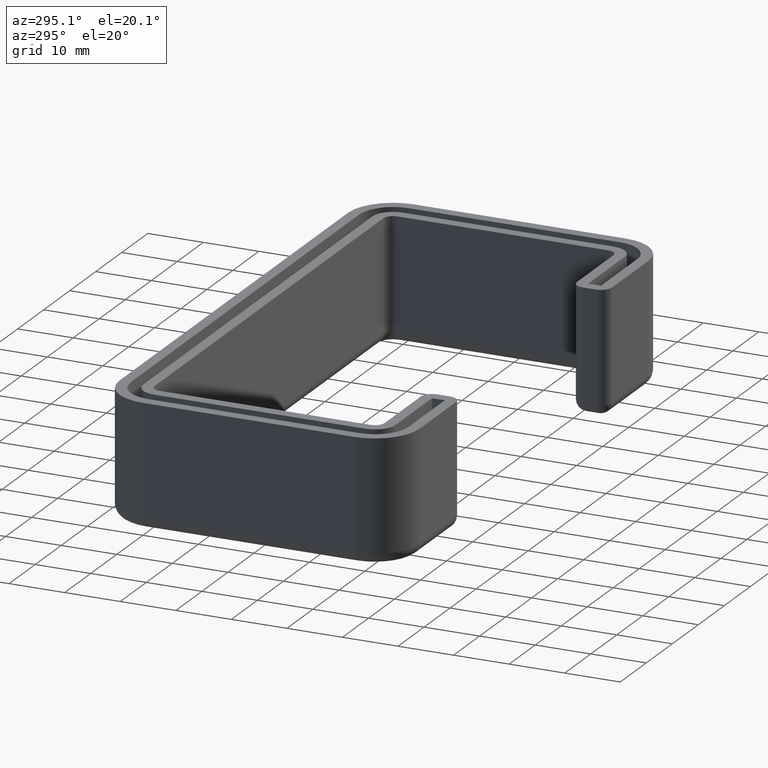
[diagram: clean part render]
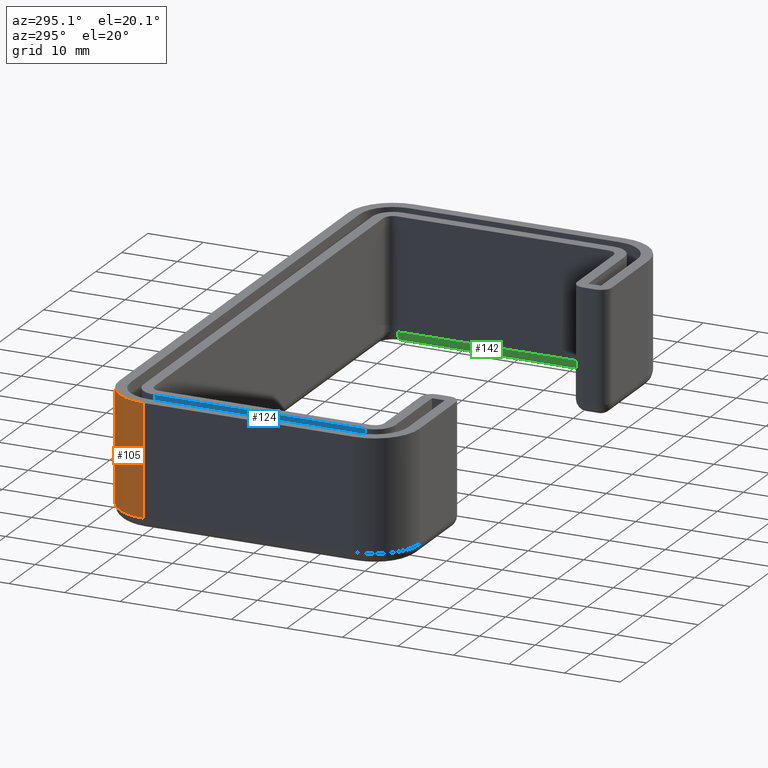
[diagram: same view with three faces highlighted in distinct colors, each labeled with its STEP entity id]
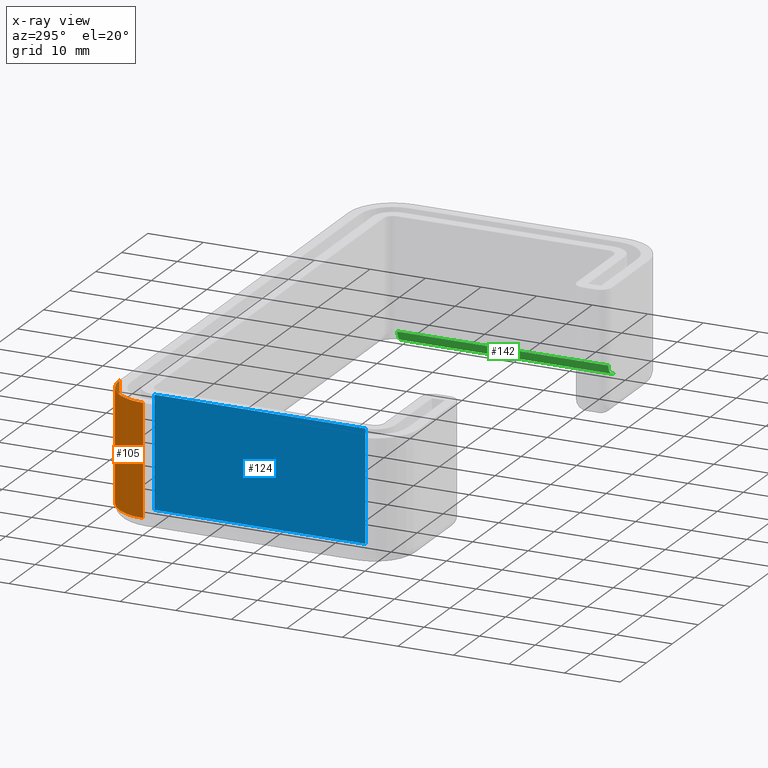
[diagram: x-ray of the same camera — body ghosted, the three highlighted faces saturated]
A machine part, auxiliary view with three faces highlighted in distinct colors.
The next image is the same camera in x-ray (body ghosted, the three faces saturated) — at least one of them is partly hidden behind the body in this view.
Their STEP definitions:

[orange] entity #105 — the highlighted cylindrical surface (partial cylindrical patch) has radius 8 mm, axis along (0, 0, 1).
#105 = ADVANCED_FACE( '', ( #208 ), #209, .T. );
#208 = FACE_OUTER_BOUND( '', #351, .T. );
#209 = CYLINDRICAL_SURFACE( '', #352, 8.00000000000001 );
#351 = EDGE_LOOP( '', ( #713, #714, #715, #716 ) );
#352 = AXIS2_PLACEMENT_3D( '', #717, #718, #719 );
#713 = ORIENTED_EDGE( '', *, *, #1132, .T. );
#714 = ORIENTED_EDGE( '', *, *, #1133, .T. );
#715 = ORIENTED_EDGE( '', *, *, #1134, .F. );
#716 = ORIENTED_EDGE( '', *, *, #1017, .T. );
#717 = CARTESIAN_POINT( '', ( -44.0000000000000, 19.0000000000000, -3.46944695195361E-015 ) );
#718 = DIRECTION( '', ( 0.000000000000000, 0.000000000000000, 1.00000000000000 ) );
#719 = DIRECTION( '', ( 1.00000000000000, 0.000000000000000, 0.000000000000000 ) );
#1017 = EDGE_CURVE( '', #1213, #1211, #1214, .T. );
#1132 = EDGE_CURVE( '', #1211, #1411, #1413, .T. );
#1133 = EDGE_CURVE( '', #1411, #1414, #1415, .F. );
#1134 = EDGE_CURVE( '', #1213, #1414, #1416, .T. );
#1211 = VERTEX_POINT( '', #1504 );
#1213 = VERTEX_POINT( '', #1507 );
#1214 = CIRCLE( '', #1508, 8.00000000000001 );
#1411 = VERTEX_POINT( '', #1775 );
#1413 = LINE( '', #1778, #1779 );
#1414 = VERTEX_POINT( '', #1780 );
#1415 = CIRCLE( '', #1781, 8.00000000000001 );
#1416 = LINE( '', #1782, #1783 );
#1504 = CARTESIAN_POINT( '', ( -44.0000000000000, 27.0000000000000, -3.46944695195361E-015 ) );
#1507 = CARTESIAN_POINT( '', ( -52.0000000000000, 19.0000000000000, -3.46944695195361E-015 ) );
#1508 = AXIS2_PLACEMENT_3D( '', #1883, #1884, #1885 );
#1775 = CARTESIAN_POINT( '', ( -44.0000000000000, 27.0000000000000, -20.0000000000000 ) );
#1778 = CARTESIAN_POINT( '', ( -44.0000000000000, 27.0000000000000, -3.46944695195361E-015 ) );
#1779 = VECTOR( '', #2086, 1000.00000000000 );
#1780 = CARTESIAN_POINT( '', ( -52.0000000000000, 19.0000000000000, -20.0000000000000 ) );
#1781 = AXIS2_PLACEMENT_3D( '', #2087, #2088, #2089 );
#1782 = CARTESIAN_POINT( '', ( -52.0000000000000, 19.0000000000000, -3.46944695195361E-015 ) );
#1783 = VECTOR( '', #2090, 1000.00000000000 );
#1883 = CARTESIAN_POINT( '', ( -44.0000000000000, 19.0000000000000, -3.46944695195361E-015 ) );
#1884 = DIRECTION( '', ( 0.000000000000000, 0.000000000000000, -1.00000000000000 ) );
#1885 = DIRECTION( '', ( -0.707106781186547, 0.707106781186548, 0.000000000000000 ) );
#2086 = DIRECTION( '', ( 0.000000000000000, 0.000000000000000, -1.00000000000000 ) );
#2087 = CARTESIAN_POINT( '', ( -44.0000000000000, 19.0000000000000, -20.0000000000000 ) );
#2088 = DIRECTION( '', ( 0.000000000000000, 0.000000000000000, -1.00000000000000 ) );
#2089 = DIRECTION( '', ( -1.00000000000000, 0.000000000000000, 0.000000000000000 ) );
#2090 = DIRECTION( '', ( 0.000000000000000, 0.000000000000000, -1.00000000000000 ) );

[blue] entity #124 — the highlighted planar face has unit normal (-1, 0, 0).
#124 = ADVANCED_FACE( '', ( #246 ), #247, .T. );
#246 = FACE_OUTER_BOUND( '', #389, .T. );
#247 = PLANE( '', #390 );
#389 = EDGE_LOOP( '', ( #846, #847, #848, #849 ) );
#390 = AXIS2_PLACEMENT_3D( '', #850, #851, #852 );
#846 = ORIENTED_EDGE( '', *, *, #1027, .T. );
#847 = ORIENTED_EDGE( '', *, *, #1156, .T. );
#848 = ORIENTED_EDGE( '', *, *, #1051, .T. );
#849 = ORIENTED_EDGE( '', *, *, #1155, .T. );
#850 = CARTESIAN_POINT( '', ( -47.7000000000003, -22.6999999999999, 80.0000000000000 ) );
#851 = DIRECTION( '', ( -1.00000000000000, 0.000000000000000, 0.000000000000000 ) );
#852 = DIRECTION( '', ( 0.000000000000000, 0.000000000000000, 1.00000000000000 ) );
#1027 = EDGE_CURVE( '', #1233, #1231, #1234, .T. );
#1051 = EDGE_CURVE( '', #1279, #1277, #1280, .T. );
#1155 = EDGE_CURVE( '', #1277, #1233, #1439, .T. );
#1156 = EDGE_CURVE( '', #1231, #1279, #1440, .T. );
#1231 = VERTEX_POINT( '', #1529 );
#1233 = VERTEX_POINT( '', #1531 );
#1234 = LINE( '', #1532, #1533 );
#1277 = VERTEX_POINT( '', #1593 );
#1279 = VERTEX_POINT( '', #1595 );
#1280 = LINE( '', #1596, #1597 );
#1439 = LINE( '', #1825, #1826 );
#1440 = LINE( '', #1827, #1828 );
#1529 = CARTESIAN_POINT( '', ( -47.7000000000003, 19.0000000000001, -1.04083408558608E-014 ) );
#1531 = CARTESIAN_POINT( '', ( -47.7000000000003, -18.9999999999999, -1.04083408558608E-014 ) );
#1532 = CARTESIAN_POINT( '', ( -47.7000000000003, -19.0000000000000, -3.46944695195361E-015 ) );
#1533 = VECTOR( '', #1905, 1000.00000000000 );
#1593 = CARTESIAN_POINT( '', ( -47.7000000000003, -18.9999999999999, -20.0000000000000 ) );
#1595 = CARTESIAN_POINT( '', ( -47.7000000000003, 19.0000000000001, -20.0000000000000 ) );
#1596 = CARTESIAN_POINT( '', ( -47.7000000000003, -11.3499999999999, -20.0000000000000 ) );
#1597 = VECTOR( '', #1941, 1000.00000000000 );
#1825 = CARTESIAN_POINT( '', ( -47.7000000000003, -18.9999999999999, 80.0000000000000 ) );
#1826 = VECTOR( '', #2113, 1000.00000000000 );
#1827 = CARTESIAN_POINT( '', ( -47.7000000000003, 19.0000000000001, 80.0000000000000 ) );
#1828 = VECTOR( '', #2114, 1000.00000000000 );
#1905 = DIRECTION( '', ( 0.000000000000000, 1.00000000000000, 0.000000000000000 ) );
#1941 = DIRECTION( '', ( 0.000000000000000, -1.00000000000000, 0.000000000000000 ) );
#2113 = DIRECTION( '', ( 0.000000000000000, 0.000000000000000, 1.00000000000000 ) );
#2114 = DIRECTION( '', ( 0.000000000000000, 0.000000000000000, -1.00000000000000 ) );

[green] entity #142 — the highlighted cylindrical surface (edge-blend (fillet) strip) has radius 2 mm, axis along (0, -1, 0).
#142 = ADVANCED_FACE( '', ( #282 ), #283, .T. );
#282 = FACE_OUTER_BOUND( '', #425, .T. );
#283 = CYLINDRICAL_SURFACE( '', #426, 2.00000000000000 );
#425 = EDGE_LOOP( '', ( #970, #971, #972, #973 ) );
#426 = AXIS2_PLACEMENT_3D( '', #974, #975, #976 );
#970 = ORIENTED_EDGE( '', *, *, #1171, .T. );
#971 = ORIENTED_EDGE( '', *, *, #1113, .F. );
#972 = ORIENTED_EDGE( '', *, *, #1173, .F. );
#973 = ORIENTED_EDGE( '', *, *, #1107, .F. );
#974 = CARTESIAN_POINT( '', ( 47.6999999999996, -19.0000000000000, -20.0000000000000 ) );
#975 = DIRECTION( '', ( 0.000000000000000, -1.00000000000000, 0.000000000000000 ) );
#976 = DIRECTION( '', ( 0.000000000000000, 0.000000000000000, 1.00000000000000 ) );
#1107 = EDGE_CURVE( '', #1373, #1375, #1376, .T. );
#1113 = EDGE_CURVE( '', #1380, #1383, #1384, .F. );
#1171 = EDGE_CURVE( '', #1373, #1383, #1455, .T. );
#1173 = EDGE_CURVE( '', #1375, #1380, #1457, .T. );
#1373 = VERTEX_POINT( '', #1718 );
#1375 = VERTEX_POINT( '', #1720 );
#1376 = LINE( '', #1721, #1722 );
#1380 = VERTEX_POINT( '', #1728 );
#1383 = VERTEX_POINT( '', #1732 );
#1384 = LINE( '', #1733, #1734 );
#1455 = CIRCLE( '', #1843, 2.00000000000000 );
#1457 = CIRCLE( '', #1845, 2.00000000000000 );
#1718 = CARTESIAN_POINT( '', ( 47.6999999999997, -18.9999999999999, -22.0000000000000 ) );
#1720 = CARTESIAN_POINT( '', ( 47.6999999999996, 19.0000000000001, -22.0000000000000 ) );
#1721 = CARTESIAN_POINT( '', ( 47.6999999999996, -19.0000000000000, -22.0000000000000 ) );
#1722 = VECTOR( '', #2051, 1000.00000000000 );
#1728 = CARTESIAN_POINT( '', ( 45.6999999999996, 19.0000000000001, -20.0000000000000 ) );
#1732 = CARTESIAN_POINT( '', ( 45.6999999999996, -18.9999999999999, -20.0000000000000 ) );
#1733 = CARTESIAN_POINT( '', ( 45.6999999999996, -18.9999999999999, -20.0000000000000 ) );
#1734 = VECTOR( '', #2061, 1000.00000000000 );
#1843 = AXIS2_PLACEMENT_3D( '', #2157, #2158, #2159 );
#1845 = AXIS2_PLACEMENT_3D( '', #2163, #2164, #2165 );
#2051 = DIRECTION( '', ( 0.000000000000000, 1.00000000000000, 0.000000000000000 ) );
#2061 = DIRECTION( '', ( 0.000000000000000, 1.00000000000000, 0.000000000000000 ) );
#2157 = CARTESIAN_POINT( '', ( 47.6999999999997, -18.9999999999999, -20.0000000000000 ) );
#2158 = DIRECTION( '', ( 0.000000000000000, 1.00000000000000, 0.000000000000000 ) );
#2159 = DIRECTION( '', ( 0.000000000000000, 0.000000000000000, 1.00000000000000 ) );
#2163 = CARTESIAN_POINT( '', ( 47.6999999999996, 19.0000000000001, -20.0000000000000 ) );
#2164 = DIRECTION( '', ( 0.000000000000000, 1.00000000000000, 0.000000000000000 ) );
#2165 = DIRECTION( '', ( 0.000000000000000, 0.000000000000000, 1.00000000000000 ) );